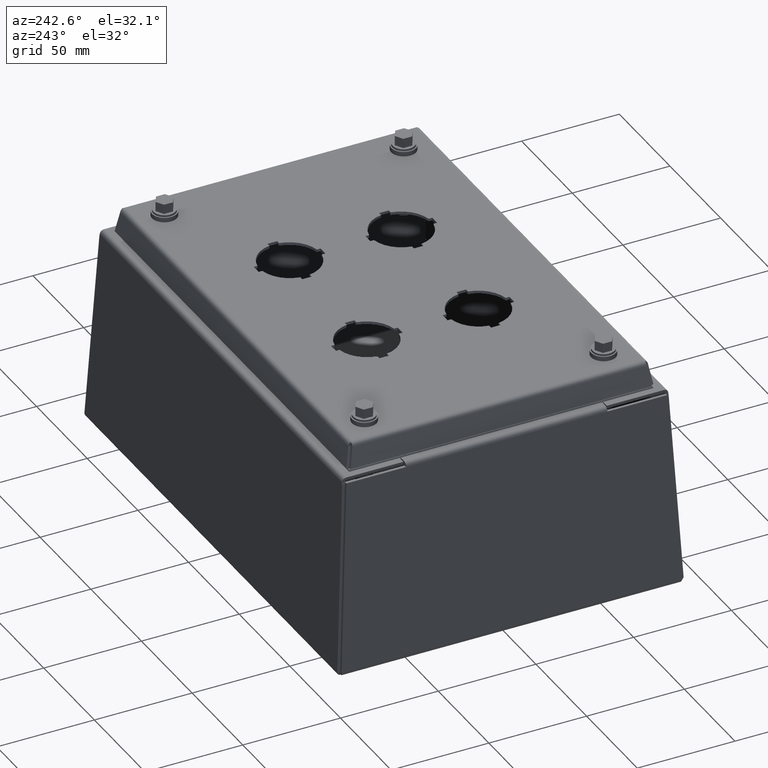
[diagram: clean part render]
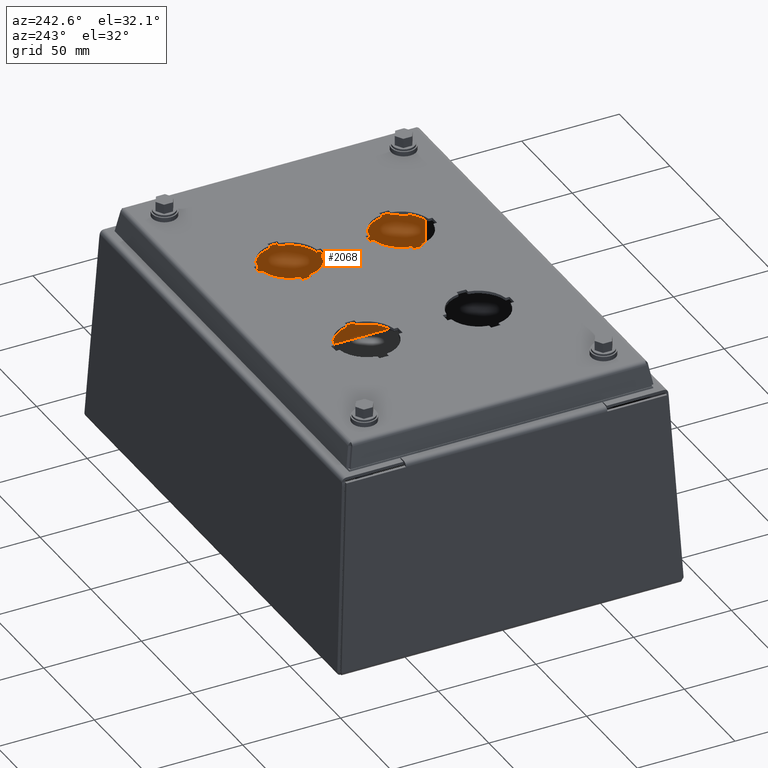
[diagram: same view with one face highlighted and labeled with its STEP entity id]
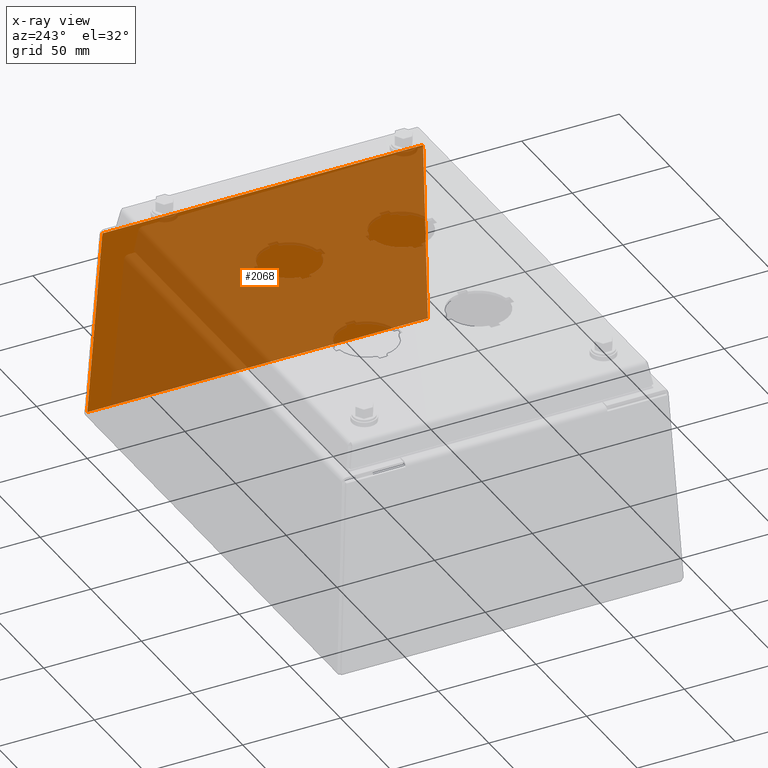
[diagram: x-ray of the same camera — body ghosted, the highlighted face saturated]
A machine part, auxiliary view. The second image highlights one B-rep face of the part: STEP entity #2068.
The next image is the same camera in x-ray: the body ghosted, the highlighted face saturated — about 84% of this face is hidden behind the body in this view.
In plain terms, the highlighted planar face has unit normal (0.9986, 0, 0.0523).
Its self-contained STEP definition (entity closure, byte-faithful):
#90 = VECTOR ( 'NONE', #5541, 39.37007874015748143 ) ;
#158 = CARTESIAN_POINT ( 'NONE',  ( 4.913900632872604923, -3.430789277473975663, 0.08751774277205340291 ) ) ;
#437 = EDGE_CURVE ( 'NONE', #1627, #10764, #9604, .T. ) ;
#1242 = EDGE_CURVE ( 'NONE', #3808, #9434, #6167, .T. ) ;
#1295 = ORIENTED_EDGE ( 'NONE', *, *, #1242, .T. ) ;
#1627 = VERTEX_POINT ( 'NONE', #6146 ) ;
#1937 = AXIS2_PLACEMENT_3D ( 'NONE', #3540, #7126, #11915 ) ;
#2068 = ADVANCED_FACE ( 'NONE', ( #14250 ), #10816, .F. ) ;
#2424 = VERTEX_POINT ( 'NONE', #4447 ) ;
#2646 = CARTESIAN_POINT ( 'NONE',  ( 4.713283653779252624, 3.230172298380637130, 3.915517742731045470 ) ) ;
#3540 = CARTESIAN_POINT ( 'NONE',  ( 4.915500000000000647, 23.85702301932976610, 0.05700000000000000205 ) ) ;
#3739 = CARTESIAN_POINT ( 'NONE',  ( 4.713283653779256177, -2.027732014307489283, 3.915517742731046802 ) ) ;
#3808 = VERTEX_POINT ( 'NONE', #9602 ) ;
#3821 = DIRECTION ( 'NONE',  ( -1.164398023577106455E-17, 1.000000000000000000, -6.102351461723836561E-19 ) ) ;
#4447 = CARTESIAN_POINT ( 'NONE',  ( 4.913900632873650309, 3.430789277475041921, 0.08751774275160652261 ) ) ;
#5127 = DIRECTION ( 'NONE',  ( -4.996276216284955738E-34, 1.000000000000000000, 9.533462941258820699E-33 ) ) ;
#5385 = CARTESIAN_POINT ( 'NONE',  ( 4.713283653779252624, -3.230172298380642903, 3.915517742731047246 ) ) ;
#5541 = DIRECTION ( 'NONE',  ( 0.05226442768871144423, 0.05226442768871385897, -0.9972646886342374506 ) ) ;
#5795 = ORIENTED_EDGE ( 'NONE', *, *, #14081, .F. ) ;
#5990 = ORIENTED_EDGE ( 'NONE', *, *, #13235, .T. ) ;
#6146 = CARTESIAN_POINT ( 'NONE',  ( 4.713283653779256177, 2.027732014307487063, 3.915517742731045470 ) ) ;
#6167 = LINE ( 'NONE', #158, #7906 ) ;
#7126 = DIRECTION ( 'NONE',  ( 0.9986295347545739443, 1.165995980544749573E-17, 0.05233595624294379994 ) ) ;
#7251 = DIRECTION ( 'NONE',  ( -4.996276216284955738E-34, 1.000000000000000000, 9.533462941258820699E-33 ) ) ;
#7373 = EDGE_LOOP ( 'NONE', ( #5990, #12147, #1295, #11898, #5795, #10376 ) ) ;
#7888 = VECTOR ( 'NONE', #7251, 39.37007874015748143 ) ;
#7906 = VECTOR ( 'NONE', #9759, 39.37007874015748854 ) ;
#8470 = LINE ( 'NONE', #12100, #10487 ) ;
#8974 = VECTOR ( 'NONE', #12323, 39.37007874015748143 ) ;
#8978 = LINE ( 'NONE', #13827, #90 ) ;
#9434 = VERTEX_POINT ( 'NONE', #5385 ) ;
#9602 = CARTESIAN_POINT ( 'NONE',  ( 4.913900632872345575, -3.430789277465300380, 0.08751774277678009417 ) ) ;
#9604 = LINE ( 'NONE', #9833, #7888 ) ;
#9759 = DIRECTION ( 'NONE',  ( -0.05226442768871898681, 0.05226442768871400468, 0.9972646886342370065 ) ) ;
#9772 = CARTESIAN_POINT ( 'NONE',  ( 4.913900632872580942, 23.85702301932976610, 0.08751774277216479991 ) ) ;
#9833 = CARTESIAN_POINT ( 'NONE',  ( 4.713283653779252624, 2.057732014307487312, 3.915517742731045470 ) ) ;
#10376 = ORIENTED_EDGE ( 'NONE', *, *, #437, .T. ) ;
#10487 = VECTOR ( 'NONE', #5127, 39.37007874015748143 ) ;
#10764 = VERTEX_POINT ( 'NONE', #2646 ) ;
#10816 = PLANE ( 'NONE',  #1937 ) ;
#11898 = ORIENTED_EDGE ( 'NONE', *, *, #15208, .T. ) ;
#11915 = DIRECTION ( 'NONE',  ( 0.05233595624294379300, 0.000000000000000000, -0.9986295347545738332 ) ) ;
#12100 = CARTESIAN_POINT ( 'NONE',  ( 4.713283653779252624, 2.057732014307487312, 3.915517742731045470 ) ) ;
#12147 = ORIENTED_EDGE ( 'NONE', *, *, #13531, .F. ) ;
#12323 = DIRECTION ( 'NONE',  ( 1.164398023577106455E-17, -1.000000000000000000, 6.102351461723836561E-19 ) ) ;
#13235 = EDGE_CURVE ( 'NONE', #10764, #2424, #8978, .T. ) ;
#13379 = VERTEX_POINT ( 'NONE', #3739 ) ;
#13531 = EDGE_CURVE ( 'NONE', #3808, #2424, #14847, .T. ) ;
#13827 = CARTESIAN_POINT ( 'NONE',  ( 4.713283653779252624, 3.230172298380638019, 3.915517742731047690 ) ) ;
#14081 = EDGE_CURVE ( 'NONE', #1627, #13379, #14734, .T. ) ;
#14250 = FACE_OUTER_BOUND ( 'NONE', #7373, .T. ) ;
#14655 = CARTESIAN_POINT ( 'NONE',  ( 4.713283653779253513, 23.85702301932976610, 3.915517742731047690 ) ) ;
#14734 = LINE ( 'NONE', #14655, #8974 ) ;
#14847 = LINE ( 'NONE', #9772, #15187 ) ;
#15187 = VECTOR ( 'NONE', #3821, 39.37007874015748143 ) ;
#15208 = EDGE_CURVE ( 'NONE', #9434, #13379, #8470, .T. ) ;